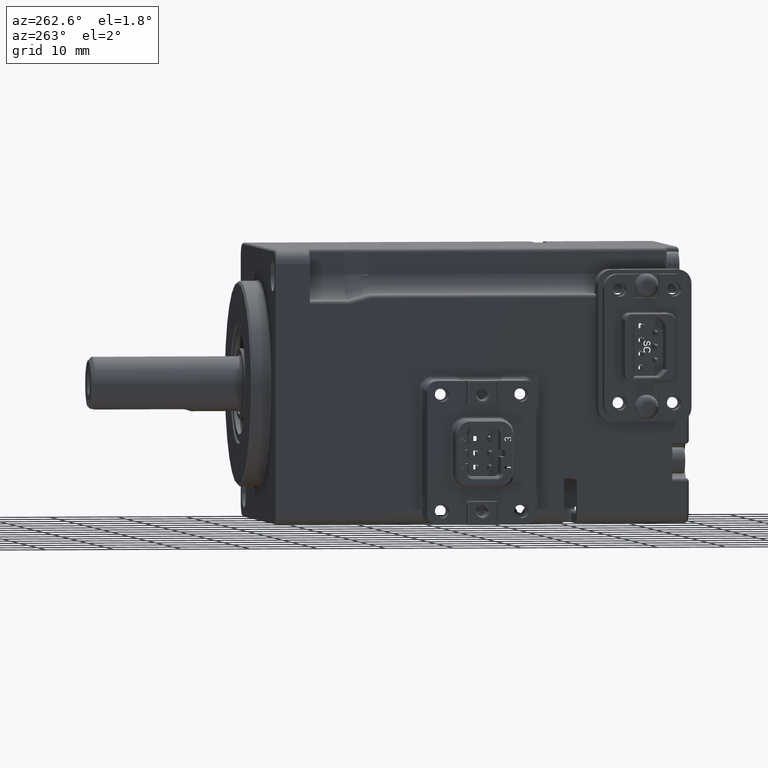
[diagram: clean part render]
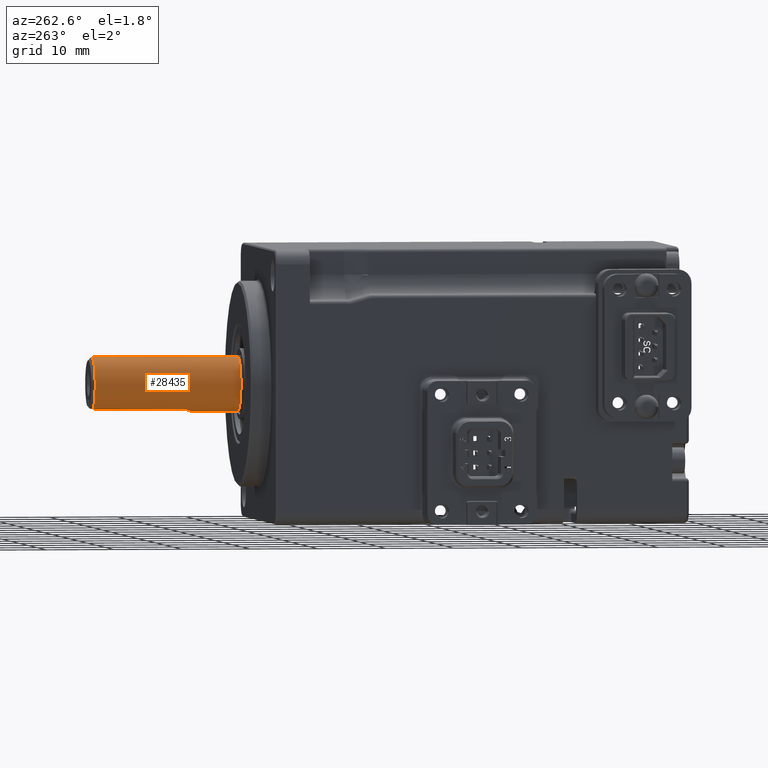
[diagram: same view with one face highlighted and labeled with its STEP entity id]
A machine part, auxiliary view. The second image highlights one B-rep face of the part: STEP entity #28435.
In plain terms, the highlighted cylindrical surface (edge-blend (fillet) strip) has radius 4 mm, axis along (-0, 1, 0).
Its self-contained STEP definition (entity closure, byte-faithful):
#205 = DIRECTION ( 'NONE',  ( -3.747002708109904803E-16, 0.000000000000000000, -1.000000000000000000 ) ) ;
#1445 = VERTEX_POINT ( 'NONE', #6243 ) ;
#1779 = CARTESIAN_POINT ( 'NONE',  ( -5.029305584403845663E-15, 63.39999999999999858, 4.000000000000033751 ) ) ;
#2549 = CARTESIAN_POINT ( 'NONE',  ( -7.537049031232826940E-15, 63.39999999999999858, -3.999999999999966249 ) ) ;
#3876 = AXIS2_PLACEMENT_3D ( 'NONE', #9677, #23572, #28289 ) ;
#4190 = ORIENTED_EDGE ( 'NONE', *, *, #23238, .T. ) ;
#4285 = CARTESIAN_POINT ( 'NONE',  ( -1.554414280713046326, 49.38640223463499268, -3.685887241020890492 ) ) ;
#5650 = DIRECTION ( 'NONE',  ( -2.253077592533159038E-16, 1.000000000000000000, 1.260301550092933046E-15 ) ) ;
#6243 = CARTESIAN_POINT ( 'NONE',  ( -2.501053888838182988E-15, 62.89999999999999858, 4.000000000000032863 ) ) ;
#6273 = EDGE_LOOP ( 'NONE', ( #26765, #16316, #15723, #25059, #4190, #16744 ) ) ;
#6409 = CARTESIAN_POINT ( 'NONE',  ( -3.078673263264883670E-15, 41.45734907715176831, -3.999999999999994227 ) ) ;
#6471 = EDGE_CURVE ( 'NONE', #33301, #1445, #28917, .T. ) ;
#6570 = CARTESIAN_POINT ( 'NONE',  ( 1.120392219300494777E-09, 48.32284821147455034, -3.999999999396777639 ) ) ;
#7260 = CARTESIAN_POINT ( 'NONE',  ( -1.640167532133023354, 63.39999999999999858, -3.648266775680808038 ) ) ;
#7607 = CYLINDRICAL_SURFACE ( 'NONE', #13216, 4.000000000000000000 ) ;
#7830 = LINE ( 'NONE', #2549, #31449 ) ;
#7961 = VERTEX_POINT ( 'NONE', #8293 ) ;
#8089 = CARTESIAN_POINT ( 'NONE',  ( -1.094398436484225701E-15, 41.45734907715176121, 6.121724571276844317E-15 ) ) ;
#8293 = CARTESIAN_POINT ( 'NONE',  ( -1.640167532133020467, 49.90000000000000568, -3.648266775680825802 ) ) ;
#9337 = CARTESIAN_POINT ( 'NONE',  ( -0.2160948840507794233, 48.33314338348393591, -3.995573254004509689 ) ) ;
#9526 = CARTESIAN_POINT ( 'NONE',  ( -1.586832844033351453, 49.48782995957719777, -3.671852177346425883 ) ) ;
#9677 = CARTESIAN_POINT ( 'NONE',  ( -5.925594068362207388E-15, 62.89999999999999858, 3.314593076744413016E-14 ) ) ;
#9681 = DIRECTION ( 'NONE',  ( 2.253077592533159038E-16, -1.000000000000000000, -1.260301550092933046E-15 ) ) ;
#9701 = CARTESIAN_POINT ( 'NONE',  ( -1.640127999639774625, 49.79368204703552436, -3.648284548479765910 ) ) ;
#10472 = DIRECTION ( 'NONE',  ( -2.253077592533159038E-16, 1.000000000000000000, 1.260301550092933046E-15 ) ) ;
#12112 = CARTESIAN_POINT ( 'NONE',  ( -0.1091573929844564528, 48.32284855885436059, -4.000000000030560443 ) ) ;
#12304 = CARTESIAN_POINT ( 'NONE',  ( -1.309108928507900949, 48.92831011147646336, -3.782946979591801373 ) ) ;
#12424 = VERTEX_POINT ( 'NONE', #19657 ) ;
#13216 = AXIS2_PLACEMENT_3D ( 'NONE', #24063, #5650, #205 ) ;
#13764 = EDGE_CURVE ( 'NONE', #14428, #33301, #17515, .T. ) ;
#13787 = B_SPLINE_CURVE_WITH_KNOTS ( 'NONE', 3,
 ( #22913, #9701, #33295, #9526, #4285, #30372, #12304, #17655, #20111, #15200, #25360, #9337, #12112, #6570 ),
 .UNSPECIFIED., .F., .F.,
 ( 4, 2, 2, 2, 2, 2, 4 ),
 ( 0.000000000000000000, 0.06254959109120364347, 0.1250991821824072869, 0.2501983643648145184, 0.3752975465472216943, 0.4378471376384254210, 0.5003967287296290367 ),
 .UNSPECIFIED. ) ;
#14428 = VERTEX_POINT ( 'NONE', #6409 ) ;
#15200 = CARTESIAN_POINT ( 'NONE',  ( -0.5324670303834884155, 48.40469672938812806, -3.965672374536524103 ) ) ;
#15723 = ORIENTED_EDGE ( 'NONE', *, *, #25335, .T. ) ;
#16316 = ORIENTED_EDGE ( 'NONE', *, *, #6471, .T. ) ;
#16744 = ORIENTED_EDGE ( 'NONE', *, *, #22585, .F. ) ;
#17254 = VECTOR ( 'NONE', #10472, 1000.000000000000000 ) ;
#17515 = CIRCLE ( 'NONE', #20308, 4.000000000000000000 ) ;
#17655 = CARTESIAN_POINT ( 'NONE',  ( -1.009780202256116644, 48.64062777854180553, -3.873602713267513042 ) ) ;
#18246 = CARTESIAN_POINT ( 'NONE',  ( 4.044026467597356290E-16, 41.45734907715175410, 4.000000000000006217 ) ) ;
#18650 = DIRECTION ( 'NONE',  ( 3.747002708109903324E-16, -1.734723475976807094E-15, 1.000000000000000000 ) ) ;
#18816 = VERTEX_POINT ( 'NONE', #32356 ) ;
#18862 = CIRCLE ( 'NONE', #3876, 4.000000000000000000 ) ;
#19322 = FACE_OUTER_BOUND ( 'NONE', #6273, .T. ) ;
#19473 = EDGE_CURVE ( 'NONE', #18816, #7961, #33804, .T. ) ;
#19657 = CARTESIAN_POINT ( 'NONE',  ( 1.120392219300494777E-09, 48.32284821147455034, -3.999999999396777639 ) ) ;
#20111 = CARTESIAN_POINT ( 'NONE',  ( -0.8298643286930600382, 48.52403026723485624, -3.918116802546020239 ) ) ;
#20308 = AXIS2_PLACEMENT_3D ( 'NONE', #8089, #28150, #18650 ) ;
#22585 = EDGE_CURVE ( 'NONE', #14428, #12424, #7830, .T. ) ;
#22913 = CARTESIAN_POINT ( 'NONE',  ( -1.640167532133020467, 49.90000000000000568, -3.648266775680825802 ) ) ;
#23238 = EDGE_CURVE ( 'NONE', #7961, #12424, #13787, .T. ) ;
#23572 = DIRECTION ( 'NONE',  ( 2.253077592533159038E-16, -1.000000000000000000, -1.260301550092933046E-15 ) ) ;
#24063 = CARTESIAN_POINT ( 'NONE',  ( -6.038247947988865611E-15, 63.39999999999999858, 3.377608154249060200E-14 ) ) ;
#25059 = ORIENTED_EDGE ( 'NONE', *, *, #19473, .T. ) ;
#25335 = EDGE_CURVE ( 'NONE', #1445, #18816, #18862, .T. ) ;
#25360 = CARTESIAN_POINT ( 'NONE',  ( -0.4280321792591029739, 48.37396140806571765, -3.978453352817877153 ) ) ;
#26765 = ORIENTED_EDGE ( 'NONE', *, *, #13764, .T. ) ;
#28150 = DIRECTION ( 'NONE',  ( -2.253077592533159038E-16, 1.000000000000000000, 1.260301550092933046E-15 ) ) ;
#28289 = DIRECTION ( 'NONE',  ( 3.747002708109902831E-16, 0.000000000000000000, 1.000000000000000000 ) ) ;
#28435 = ADVANCED_FACE ( 'NONE', ( #19322 ), #7607, .T. ) ;
#28917 = LINE ( 'NONE', #1779, #17254 ) ;
#29935 = VECTOR ( 'NONE', #9681, 1000.000000000000000 ) ;
#30372 = CARTESIAN_POINT ( 'NONE',  ( -1.431204434103771517, 49.10286656942438555, -3.736245161418485061 ) ) ;
#31449 = VECTOR ( 'NONE', #31572, 1000.000000000000000 ) ;
#31572 = DIRECTION ( 'NONE',  ( -2.253077592533159038E-16, 1.000000000000000000, 1.260301550092933046E-15 ) ) ;
#32356 = CARTESIAN_POINT ( 'NONE',  ( -1.640167532133023354, 62.89999999999999858, -3.648266775680809371 ) ) ;
#33295 = CARTESIAN_POINT ( 'NONE',  ( -1.629264850746774629, 49.69099116134380978, -3.653222267164668136 ) ) ;
#33301 = VERTEX_POINT ( 'NONE', #18246 ) ;
#33804 = LINE ( 'NONE', #7260, #29935 ) ;